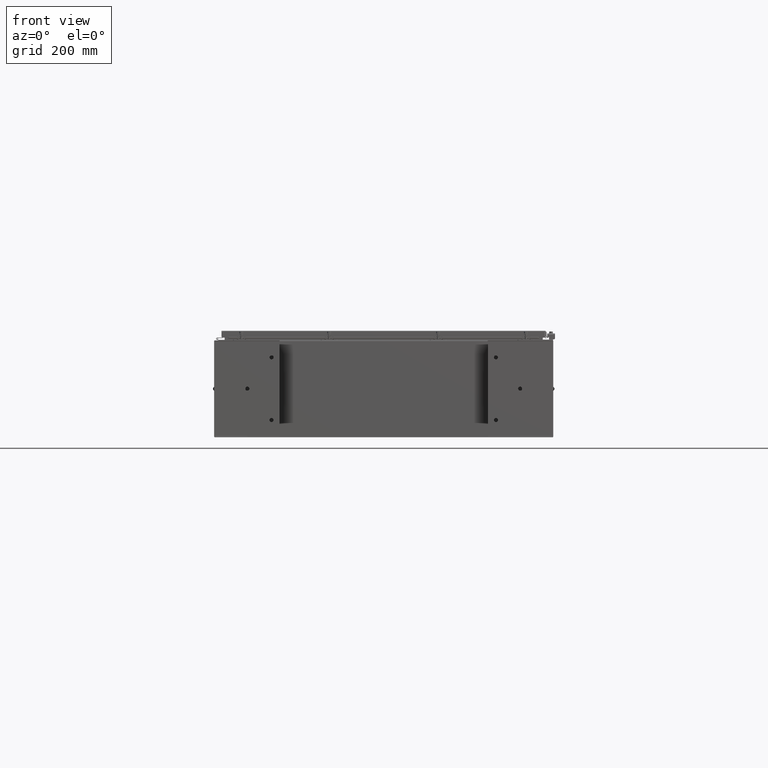
[diagram: clean part render]
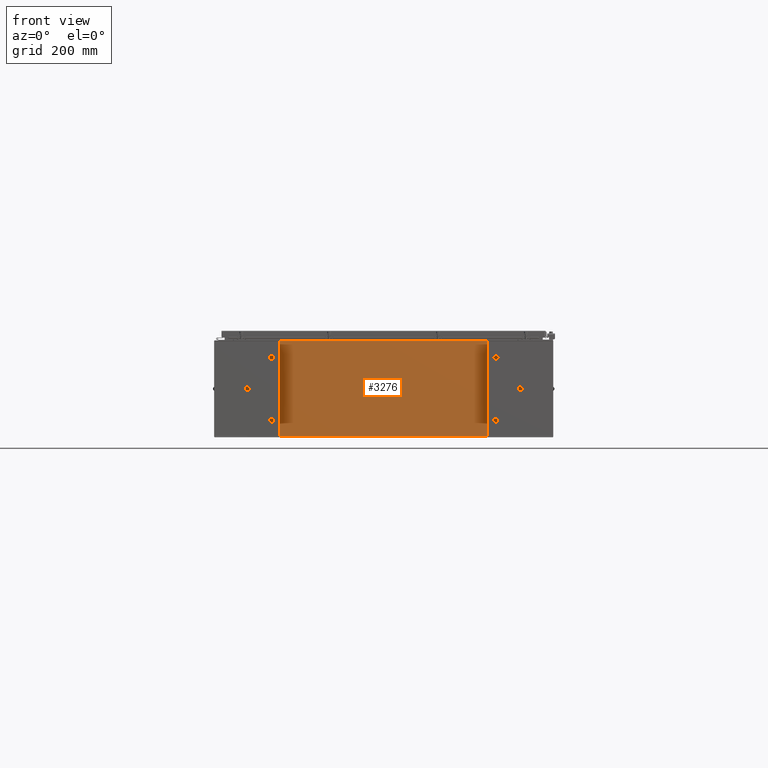
[diagram: same view with one face highlighted and labeled with its STEP entity id]
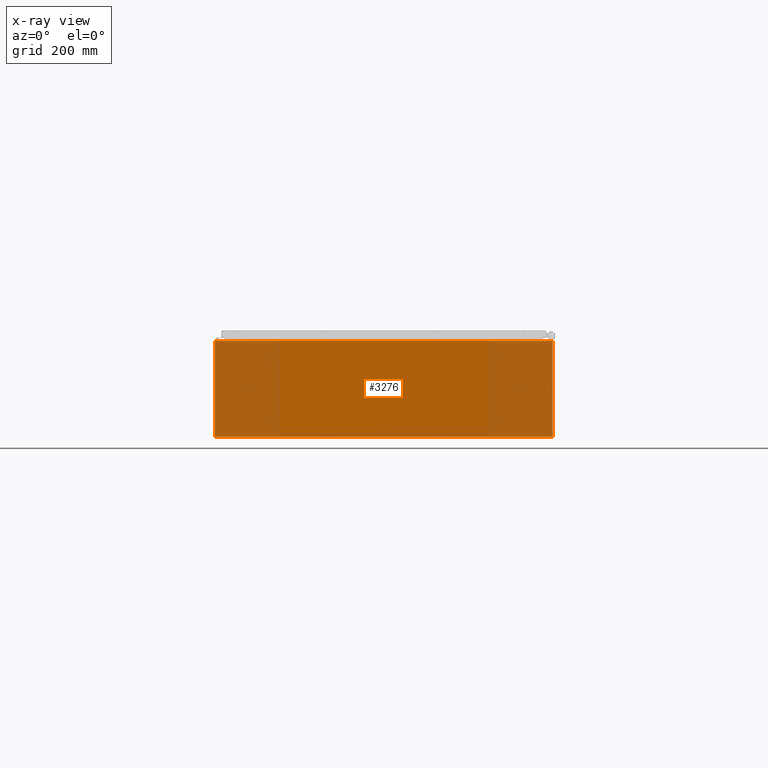
[diagram: x-ray of the same camera — body ghosted, the highlighted face saturated]
A machine part, front view. The second image highlights one B-rep face of the part: STEP entity #3276.
The next image is the same camera in x-ray: the body ghosted, the highlighted face saturated — about 38% of this face is hidden behind the body in this view.
In plain terms, the highlighted planar face has unit normal (-0, 1, -0).
Its self-contained STEP definition (entity closure, byte-faithful):
#148 = DIRECTION ( 'NONE',  ( 1.302171834120001500E-013, 0.0000000000000000000, -1.000000000000000000 ) ) ;
#338 = CARTESIAN_POINT ( 'NONE',  ( -20.92530000000000400, 0.0000000000000000000, 5.925300000000000000 ) ) ;
#3073 = VECTOR ( 'NONE', #43127, 39.37007874015748100 ) ;
#3276 = ADVANCED_FACE ( 'NONE', ( #43451 ), #66499, .F. ) ;
#3852 = CARTESIAN_POINT ( 'NONE',  ( -20.92530000000000400, 0.0000000000000000000, 5.925300000000000000 ) ) ;
#4494 = VERTEX_POINT ( 'NONE', #37929 ) ;
#4880 = EDGE_CURVE ( 'NONE', #4494, #29996, #16951, .T. ) ;
#5121 = EDGE_CURVE ( 'NONE', #56390, #19539, #49023, .T. ) ;
#5199 = DIRECTION ( 'NONE',  ( 0.0000000000000000000, 0.0000000000000000000, -1.000000000000000000 ) ) ;
#5403 = CARTESIAN_POINT ( 'NONE',  ( -19.63720000000000400, -7.171100983368691200E-016, 5.912300000000000100 ) ) ;
#5807 = DIRECTION ( 'NONE',  ( 1.000000000000000000, 0.0000000000000000000, 0.0000000000000000000 ) ) ;
#5857 = LINE ( 'NONE', #52654, #12285 ) ;
#8329 = DIRECTION ( 'NONE',  ( 0.0000000000000000000, 0.0000000000000000000, -1.000000000000000000 ) ) ;
#9389 = EDGE_CURVE ( 'NONE', #60544, #39352, #50158, .T. ) ;
#9694 = VERTEX_POINT ( 'NONE', #5403 ) ;
#9776 = DIRECTION ( 'NONE',  ( 1.000000000000000000, 0.0000000000000000000, 0.0000000000000000000 ) ) ;
#10075 = CARTESIAN_POINT ( 'NONE',  ( 0.0000000000000000000, 0.0000000000000000000, 0.0000000000000000000 ) ) ;
#11033 = VECTOR ( 'NONE', #14165, 39.37007874015748100 ) ;
#11777 = ORIENTED_EDGE ( 'NONE', *, *, #44556, .F. ) ;
#11965 = ORIENTED_EDGE ( 'NONE', *, *, #55637, .T. ) ;
#12182 = CARTESIAN_POINT ( 'NONE',  ( 20.92530000000000400, 0.0000000000000000000, 5.925300000000000000 ) ) ;
#12285 = VECTOR ( 'NONE', #148, 39.37007874015748100 ) ;
#12664 = LINE ( 'NONE', #66392, #11033 ) ;
#12779 = EDGE_CURVE ( 'NONE', #39352, #18764, #55669, .T. ) ;
#13257 = CARTESIAN_POINT ( 'NONE',  ( -19.67455000000000400, 0.0000000000000000000, 5.874950000000000100 ) ) ;
#13582 = EDGE_CURVE ( 'NONE', #9694, #65615, #65374, .T. ) ;
#13747 = CARTESIAN_POINT ( 'NONE',  ( 19.67455000000000400, 0.0000000000000000000, 5.874950000000000100 ) ) ;
#14165 = DIRECTION ( 'NONE',  ( 0.0000000000000000000, 0.0000000000000000000, -1.000000000000000000 ) ) ;
#14818 = EDGE_CURVE ( 'NONE', #34594, #25922, #63681, .T. ) ;
#16874 = CARTESIAN_POINT ( 'NONE',  ( -19.67455000000000400, -0.0000000000000000000, 0.0000000000000000000 ) ) ;
#16951 = LINE ( 'NONE', #12182, #3073 ) ;
#18070 = CARTESIAN_POINT ( 'NONE',  ( 19.63720000000000400, 0.0000000000000000000, 5.912300000000000100 ) ) ;
#18764 = VERTEX_POINT ( 'NONE', #48457 ) ;
#19363 = ORIENTED_EDGE ( 'NONE', *, *, #64871, .T. ) ;
#19539 = VERTEX_POINT ( 'NONE', #46465 ) ;
#20150 = ORIENTED_EDGE ( 'NONE', *, *, #59902, .F. ) ;
#21081 = CARTESIAN_POINT ( 'NONE',  ( -20.92530000000000400, 0.0000000000000000000, 5.925300000000000000 ) ) ;
#22717 = ORIENTED_EDGE ( 'NONE', *, *, #4880, .T. ) ;
#22910 = VERTEX_POINT ( 'NONE', #54242 ) ;
#25922 = VERTEX_POINT ( 'NONE', #3852 ) ;
#27858 = ORIENTED_EDGE ( 'NONE', *, *, #9389, .F. ) ;
#29057 = DIRECTION ( 'NONE',  ( -0.0000000000000000000, 1.000000000000000000, -0.0000000000000000000 ) ) ;
#29382 = CARTESIAN_POINT ( 'NONE',  ( -19.63720000000000400, -7.171100983368691200E-016, 5.912300000000000100 ) ) ;
#29996 = VERTEX_POINT ( 'NONE', #59570 ) ;
#31057 = VECTOR ( 'NONE', #52542, 39.37007874015748100 ) ;
#31599 = VECTOR ( 'NONE', #5807, 39.37007874015748100 ) ;
#33199 = LINE ( 'NONE', #338, #31599 ) ;
#33416 = ORIENTED_EDGE ( 'NONE', *, *, #57765, .T. ) ;
#34594 = VERTEX_POINT ( 'NONE', #36267 ) ;
#36267 = CARTESIAN_POINT ( 'NONE',  ( -20.92530000000000400, 0.0000000000000000000, -5.925300000000000000 ) ) ;
#36937 = CARTESIAN_POINT ( 'NONE',  ( 19.63720000000000400, 0.0000000000000000000, 0.0000000000000000000 ) ) ;
#37929 = CARTESIAN_POINT ( 'NONE',  ( 20.92530000000000400, 0.0000000000000000000, 5.925300000000000000 ) ) ;
#39315 = ORIENTED_EDGE ( 'NONE', *, *, #14818, .T. ) ;
#39352 = VERTEX_POINT ( 'NONE', #13257 ) ;
#39825 = CARTESIAN_POINT ( 'NONE',  ( -20.92530000000000400, 0.0000000000000000000, -5.925300000000000000 ) ) ;
#39983 = DIRECTION ( 'NONE',  ( -0.0000000000000000000, -0.0000000000000000000, 1.000000000000000000 ) ) ;
#40360 = AXIS2_PLACEMENT_3D ( 'NONE', #44576, #29057, #5199 ) ;
#41656 = LINE ( 'NONE', #21081, #31057 ) ;
#41734 = VECTOR ( 'NONE', #53179, 39.37007874015748100 ) ;
#42154 = ORIENTED_EDGE ( 'NONE', *, *, #47160, .F. ) ;
#42856 = AXIS2_PLACEMENT_3D ( 'NONE', #56979, #53692, #8329 ) ;
#43127 = DIRECTION ( 'NONE',  ( 0.0000000000000000000, 0.0000000000000000000, -1.000000000000000000 ) ) ;
#43451 = FACE_OUTER_BOUND ( 'NONE', #59288, .T. ) ;
#43493 = ORIENTED_EDGE ( 'NONE', *, *, #5121, .F. ) ;
#44556 = EDGE_CURVE ( 'NONE', #19539, #65615, #60180, .T. ) ;
#44576 = CARTESIAN_POINT ( 'NONE',  ( -19.65587500000000500, 0.0000000000000000000, 5.874950000000000100 ) ) ;
#46274 = VECTOR ( 'NONE', #57992, 39.37007874015748100 ) ;
#46465 = CARTESIAN_POINT ( 'NONE',  ( 19.63720000000000400, 0.0000000000000000000, 5.874950000000000100 ) ) ;
#47160 = EDGE_CURVE ( 'NONE', #22910, #56390, #5857, .T. ) ;
#48457 = CARTESIAN_POINT ( 'NONE',  ( -19.67455000000000400, 0.0000000000000000000, 5.925300000000000000 ) ) ;
#49023 = CIRCLE ( 'NONE', #42856, 0.01867499999999949400 ) ;
#49096 = ORIENTED_EDGE ( 'NONE', *, *, #12779, .F. ) ;
#49895 = VECTOR ( 'NONE', #9776, 39.37007874015748100 ) ;
#50158 = CIRCLE ( 'NONE', #40360, 0.01867499999999949400 ) ;
#50194 = DIRECTION ( 'NONE',  ( -1.000000000000000000, -0.0000000000000000000, -0.0000000000000000000 ) ) ;
#52542 = DIRECTION ( 'NONE',  ( 1.000000000000000000, 0.0000000000000000000, 0.0000000000000000000 ) ) ;
#52654 = CARTESIAN_POINT ( 'NONE',  ( 19.67455000000076700, 0.0000000000000000000, 2.561964485898667500E-012 ) ) ;
#52929 = AXIS2_PLACEMENT_3D ( 'NONE', #10075, #66718, #67316 ) ;
#53179 = DIRECTION ( 'NONE',  ( 0.0000000000000000000, 0.0000000000000000000, 1.000000000000000000 ) ) ;
#53692 = DIRECTION ( 'NONE',  ( -0.0000000000000000000, 1.000000000000000000, -0.0000000000000000000 ) ) ;
#54242 = CARTESIAN_POINT ( 'NONE',  ( 19.67454999999998200, 0.0000000000000000000, 5.925300000000000000 ) ) ;
#55131 = VECTOR ( 'NONE', #50194, 39.37007874015748100 ) ;
#55637 = EDGE_CURVE ( 'NONE', #29996, #34594, #56762, .T. ) ;
#55669 = LINE ( 'NONE', #16874, #41734 ) ;
#56390 = VERTEX_POINT ( 'NONE', #13747 ) ;
#56532 = ORIENTED_EDGE ( 'NONE', *, *, #13582, .T. ) ;
#56762 = LINE ( 'NONE', #39825, #55131 ) ;
#56979 = CARTESIAN_POINT ( 'NONE',  ( 19.65587500000000500, 0.0000000000000000000, 5.874950000000000100 ) ) ;
#57765 = EDGE_CURVE ( 'NONE', #25922, #18764, #41656, .T. ) ;
#57992 = DIRECTION ( 'NONE',  ( 0.0000000000000000000, 0.0000000000000000000, 1.000000000000000000 ) ) ;
#58621 = CARTESIAN_POINT ( 'NONE',  ( -19.63720000000000400, -0.0000000000000000000, 5.874950000000000100 ) ) ;
#59288 = EDGE_LOOP ( 'NONE', ( #49096, #27858, #20150, #56532, #11777, #43493, #42154, #19363, #22717, #11965, #39315, #33416 ) ) ;
#59570 = CARTESIAN_POINT ( 'NONE',  ( 20.92530000000000400, 0.0000000000000000000, -5.925300000000000000 ) ) ;
#59902 = EDGE_CURVE ( 'NONE', #9694, #60544, #12664, .T. ) ;
#60180 = LINE ( 'NONE', #36937, #46274 ) ;
#60544 = VERTEX_POINT ( 'NONE', #58621 ) ;
#62024 = VECTOR ( 'NONE', #39983, 39.37007874015748100 ) ;
#63366 = CARTESIAN_POINT ( 'NONE',  ( -20.92530000000000400, 0.0000000000000000000, 5.925300000000000000 ) ) ;
#63681 = LINE ( 'NONE', #63366, #62024 ) ;
#64871 = EDGE_CURVE ( 'NONE', #22910, #4494, #33199, .T. ) ;
#65374 = LINE ( 'NONE', #29382, #49895 ) ;
#65615 = VERTEX_POINT ( 'NONE', #18070 ) ;
#66392 = CARTESIAN_POINT ( 'NONE',  ( -19.63720000000000400, -0.0000000000000000000, 0.0000000000000000000 ) ) ;
#66499 = PLANE ( 'NONE',  #52929 ) ;
#66718 = DIRECTION ( 'NONE',  ( 0.0000000000000000000, -1.000000000000000000, 0.0000000000000000000 ) ) ;
#67316 = DIRECTION ( 'NONE',  ( 0.0000000000000000000, -0.0000000000000000000, -1.000000000000000000 ) ) ;